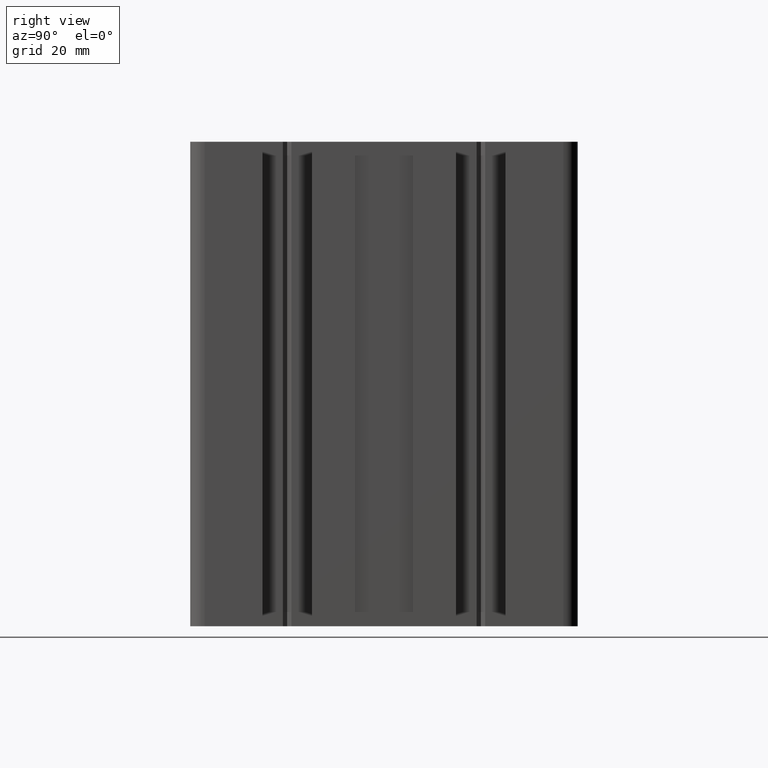
[diagram: clean part render]
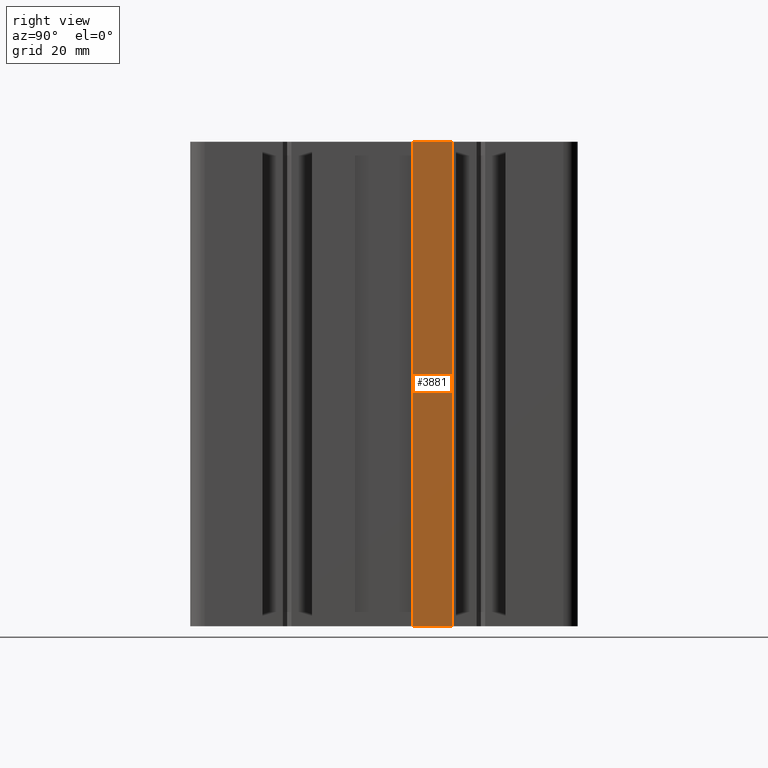
[diagram: same view with one face highlighted and labeled with its STEP entity id]
A machine part, right view. The second image highlights one B-rep face of the part: STEP entity #3881.
In plain terms, the highlighted planar face has unit normal (-1, 0, 0).
Its self-contained STEP definition (entity closure, byte-faithful):
#2427 = VERTEX_POINT ( 'NONE', #8056 ) ;
#2430 = VERTEX_POINT ( 'NONE', #8092 ) ;
#2434 = EDGE_CURVE ( 'NONE', #2427, #2430, #8085, .T. ) ;
#3880 = ORIENTED_EDGE ( 'NONE', *, *, #3882, .F. ) ;
#3881 = ADVANCED_FACE ( 'NONE', ( #10422 ), #10417, .F. ) ;
#3882 = EDGE_CURVE ( 'NONE', #2430, #4372, #10404, .T. ) ;
#3926 = ORIENTED_EDGE ( 'NONE', *, *, #5897, .T. ) ;
#3928 = ORIENTED_EDGE ( 'NONE', *, *, #2434, .F. ) ;
#3931 = ORIENTED_EDGE ( 'NONE', *, *, #3939, .T. ) ;
#3937 = EDGE_LOOP ( 'NONE', ( #3926, #3880, #3928, #3931 ) ) ;
#3939 = EDGE_CURVE ( 'NONE', #2427, #4164, #10498, .T. ) ;
#4164 = VERTEX_POINT ( 'NONE', #10783 ) ;
#4372 = VERTEX_POINT ( 'NONE', #11108 ) ;
#5897 = EDGE_CURVE ( 'NONE', #4164, #4372, #13367, .T. ) ;
#8056 = CARTESIAN_POINT ( 'NONE',  ( 39.99999853022909200, 6.000000190734876800, 100.0000000000000000 ) ) ;
#8082 = DIRECTION ( 'NONE',  ( -0.0000000000000000000, 1.000000000000000000, -0.0000000000000000000 ) ) ;
#8083 = VECTOR ( 'NONE', #8082, 1000.000000000000000 ) ;
#8084 = CARTESIAN_POINT ( 'NONE',  ( 39.99999853022909200, 14.19999980926513000, 100.0000000000000000 ) ) ;
#8085 = LINE ( 'NONE', #8084, #8083 ) ;
#8092 = CARTESIAN_POINT ( 'NONE',  ( 39.99999853022909200, 14.19999980926513000, 100.0000000000000000 ) ) ;
#10371 = AXIS2_PLACEMENT_3D ( 'NONE', #10402, #10401, #10400 ) ;
#10396 = DIRECTION ( 'NONE',  ( -0.0000000000000000000, -0.0000000000000000000, -1.000000000000000000 ) ) ;
#10397 = VECTOR ( 'NONE', #10396, 1000.000000000000000 ) ;
#10398 = CARTESIAN_POINT ( 'NONE',  ( 39.99999853022909200, 14.19999980926513000, 100.0000000000000000 ) ) ;
#10400 = DIRECTION ( 'NONE',  ( 0.0000000000000000000, 0.0000000000000000000, 1.000000000000000000 ) ) ;
#10401 = DIRECTION ( 'NONE',  ( -1.000000000000000000, 0.0000000000000000000, 0.0000000000000000000 ) ) ;
#10402 = CARTESIAN_POINT ( 'NONE',  ( 39.99999853022909200, 14.19999980926513000, 100.0000000000000000 ) ) ;
#10404 = LINE ( 'NONE', #10398, #10397 ) ;
#10417 = PLANE ( 'NONE',  #10371 ) ;
#10422 = FACE_OUTER_BOUND ( 'NONE', #3937, .T. ) ;
#10486 = DIRECTION ( 'NONE',  ( -0.0000000000000000000, -0.0000000000000000000, -1.000000000000000000 ) ) ;
#10487 = VECTOR ( 'NONE', #10486, 1000.000000000000000 ) ;
#10488 = CARTESIAN_POINT ( 'NONE',  ( 39.99999853022909200, 6.000000190734876800, 100.0000000000000000 ) ) ;
#10498 = LINE ( 'NONE', #10488, #10487 ) ;
#10783 = CARTESIAN_POINT ( 'NONE',  ( 39.99999853022909200, 6.000000190734876800, 0.0000000000000000000 ) ) ;
#11108 = CARTESIAN_POINT ( 'NONE',  ( 39.99999853022909200, 14.19999980926513000, 0.0000000000000000000 ) ) ;
#13364 = DIRECTION ( 'NONE',  ( -0.0000000000000000000, 1.000000000000000000, -0.0000000000000000000 ) ) ;
#13365 = VECTOR ( 'NONE', #13364, 1000.000000000000000 ) ;
#13366 = CARTESIAN_POINT ( 'NONE',  ( 39.99999853022909200, 14.19999980926513000, 0.0000000000000000000 ) ) ;
#13367 = LINE ( 'NONE', #13366, #13365 ) ;